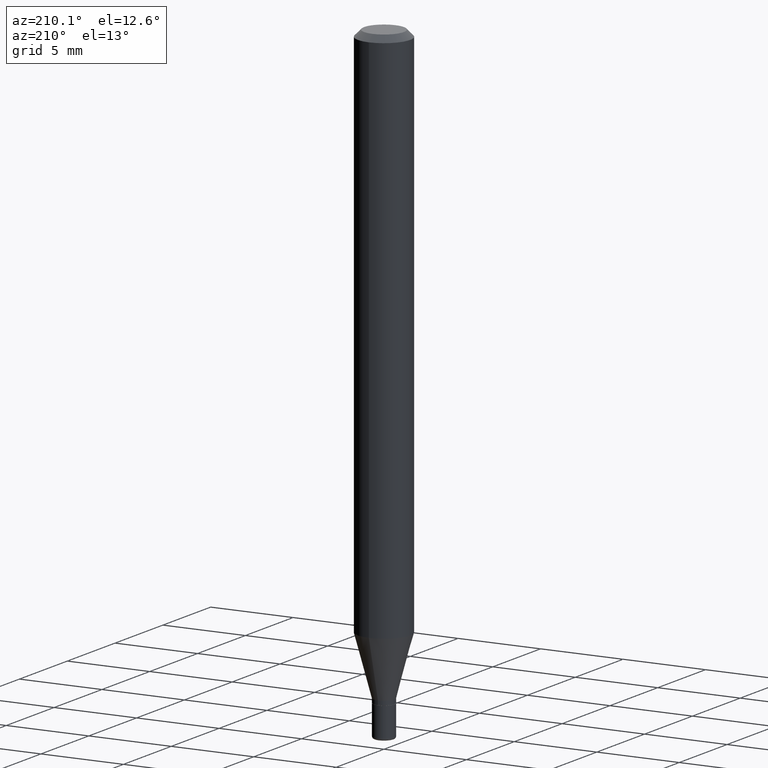
[diagram: clean part render]
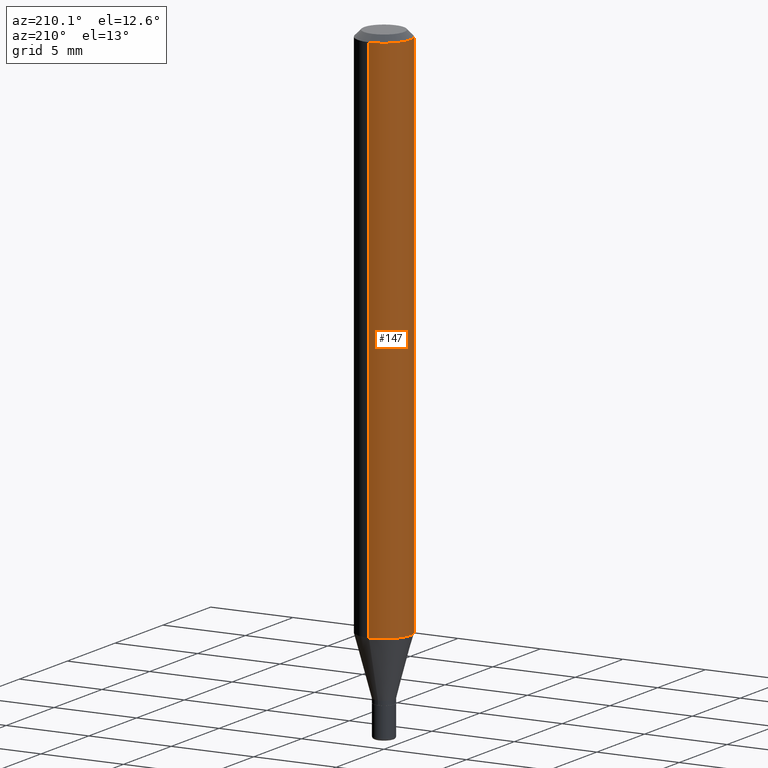
[diagram: same view with one face highlighted and labeled with its STEP entity id]
A machine part, auxiliary view. The second image highlights one B-rep face of the part: STEP entity #147.
In plain terms, the highlighted cylindrical surface (edge-blend (fillet) strip) has radius 1.5875 mm, axis along (-0, 0, 1).
Its self-contained STEP definition (entity closure, byte-faithful):
#24 = DIRECTION ( 'NONE',  ( -2.445546592424236773E-29, 3.491369944521436528E-15, 1.000000000000000000 ) ) ;
#44 = CARTESIAN_POINT ( 'NONE',  ( 0.000000000000000000, 0.000000000000000000, 0.000000000000000000 ) ) ;
#70 = EDGE_CURVE ( 'NONE', #103, #170, #511, .T. ) ;
#77 = DIRECTION ( 'NONE',  ( -2.445546592424236492E-29, 3.491369944521436528E-15, 1.000000000000000000 ) ) ;
#79 = EDGE_CURVE ( 'NONE', #170, #334, #340, .T. ) ;
#89 = CYLINDRICAL_SURFACE ( 'NONE', #305, 0.06250000000000000000 ) ;
#103 = VERTEX_POINT ( 'NONE', #206 ) ;
#109 = AXIS2_PLACEMENT_3D ( 'NONE', #507, #148, #392 ) ;
#119 = FACE_OUTER_BOUND ( 'NONE', #425, .T. ) ;
#137 = CIRCLE ( 'NONE', #109, 0.06250000000000000000 ) ;
#144 = CARTESIAN_POINT ( 'NONE',  ( -4.364351673553912750E-16, -0.06250000000000005551, -0.01499999999999948597 ) ) ;
#147 = ADVANCED_FACE ( 'NONE', ( #119 ), #89, .T. ) ;
#148 = DIRECTION ( 'NONE',  ( -2.445546592424236492E-29, 3.491369944521436528E-15, 1.000000000000000000 ) ) ;
#156 = DIRECTION ( 'NONE',  ( -2.445546592424236492E-29, 3.491369944521436528E-15, 1.000000000000000000 ) ) ;
#169 = DIRECTION ( 'NONE',  ( -6.982962677686265922E-15, -1.000000000000000000, 3.491369944521436528E-15 ) ) ;
#170 = VERTEX_POINT ( 'NONE', #448 ) ;
#180 = LINE ( 'NONE', #218, #479 ) ;
#206 = CARTESIAN_POINT ( 'NONE',  ( 4.440892098500935790E-16, 0.06249999999999553135, -1.275048094716167979 ) ) ;
#218 = CARTESIAN_POINT ( 'NONE',  ( 4.440892098500625669E-16, 0.06250000000000000000, -2.182106215325897830E-16 ) ) ;
#265 = CARTESIAN_POINT ( 'NONE',  ( 4.440892098500939734E-16, 0.06249999999999995143, -0.01499999999999992138 ) ) ;
#271 = ORIENTED_EDGE ( 'NONE', *, *, #70, .T. ) ;
#303 = ORIENTED_EDGE ( 'NONE', *, *, #79, .T. ) ;
#305 = AXIS2_PLACEMENT_3D ( 'NONE', #44, #77, #169 ) ;
#314 = DIRECTION ( 'NONE',  ( -6.982962677686265922E-15, -1.000000000000000000, 4.370956789862821150E-15 ) ) ;
#334 = VERTEX_POINT ( 'NONE', #144 ) ;
#340 = LINE ( 'NONE', #345, #428 ) ;
#345 = CARTESIAN_POINT ( 'NONE',  ( -4.364351673553916201E-16, -0.06250000000000000000, 2.182106215325897830E-16 ) ) ;
#367 = ORIENTED_EDGE ( 'NONE', *, *, #514, .F. ) ;
#378 = EDGE_CURVE ( 'NONE', #103, #405, #180, .T. ) ;
#392 = DIRECTION ( 'NONE',  ( -6.982962677686265922E-15, -1.000000000000000000, 3.483106191921935554E-15 ) ) ;
#405 = VERTEX_POINT ( 'NONE', #265 ) ;
#417 = ORIENTED_EDGE ( 'NONE', *, *, #378, .F. ) ;
#425 = EDGE_LOOP ( 'NONE', ( #417, #271, #303, #367 ) ) ;
#428 = VECTOR ( 'NONE', #501, 39.37007874015748143 ) ;
#448 = CARTESIAN_POINT ( 'NONE',  ( -4.364351673553606080E-16, -0.06250000000000446865, -1.275048094716167535 ) ) ;
#479 = VECTOR ( 'NONE', #24, 39.37007874015748143 ) ;
#494 = AXIS2_PLACEMENT_3D ( 'NONE', #510, #156, #314 ) ;
#501 = DIRECTION ( 'NONE',  ( -2.445546592424236773E-29, 3.491369944521436528E-15, 1.000000000000000000 ) ) ;
#507 = CARTESIAN_POINT ( 'NONE',  ( 3.668319888636282221E-31, -5.237054916782051820E-17, -0.01499999999999970281 ) ) ;
#510 = CARTESIAN_POINT ( 'NONE',  ( 3.118189523210138983E-29, -4.451664595711349999E-15, -1.275048094716167757 ) ) ;
#511 = CIRCLE ( 'NONE', #494, 0.06250000000000000000 ) ;
#514 = EDGE_CURVE ( 'NONE', #405, #334, #137, .T. ) ;